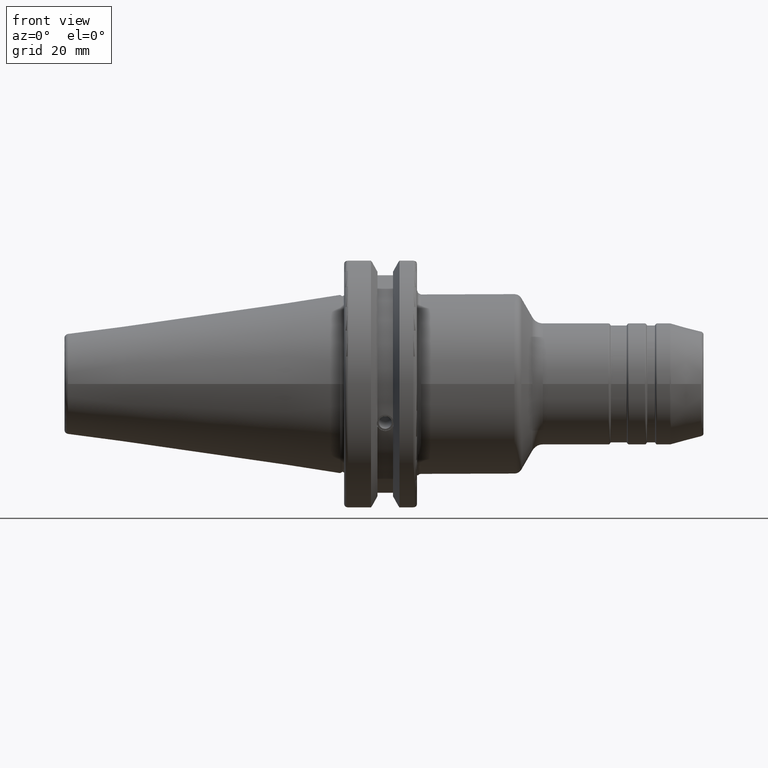
[diagram: clean part render]
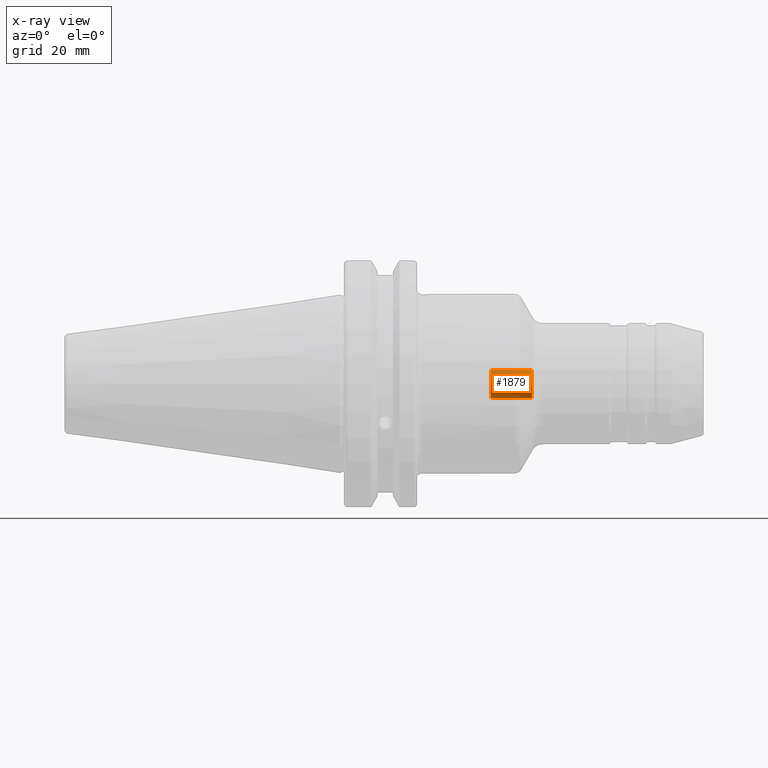
[diagram: x-ray — body ghosted, one internal face saturated and labeled with its STEP entity id]
A machine part, front view, then the same camera in x-ray: the body is ghosted and one INTERNAL B-rep face — a face not visible from any outside direction — is saturated and labeled: STEP entity #1879.
In plain terms, the highlighted cylindrical surface (bore or boss wall) has radius 3.4585 mm, axis along (1, 0, 0).
Its self-contained STEP definition (entity closure, byte-faithful):
#91=CYLINDRICAL_SURFACE('',#2074,3.4585);
#181=LINE('',#3030,#276);
#276=VECTOR('',#2441,3.4585);
#405=FACE_OUTER_BOUND('',#514,.T.);
#514=EDGE_LOOP('',(#1390,#1391,#1392,#1393,#1394));
#674=CIRCLE('',#2075,3.4585);
#675=CIRCLE('',#2076,3.4585);
#676=CIRCLE('',#2077,3.4585);
#796=VERTEX_POINT('',#3027);
#797=VERTEX_POINT('',#3029);
#798=VERTEX_POINT('',#3031);
#1018=EDGE_CURVE('',#796,#796,#674,.T.);
#1019=EDGE_CURVE('',#796,#797,#181,.T.);
#1020=EDGE_CURVE('',#798,#797,#675,.T.);
#1021=EDGE_CURVE('',#797,#798,#676,.T.);
#1390=ORIENTED_EDGE('',*,*,#1018,.F.);
#1391=ORIENTED_EDGE('',*,*,#1019,.T.);
#1392=ORIENTED_EDGE('',*,*,#1020,.F.);
#1393=ORIENTED_EDGE('',*,*,#1021,.F.);
#1394=ORIENTED_EDGE('',*,*,#1019,.F.);
#1879=ADVANCED_FACE('',(#405),#91,.F.);
#2074=AXIS2_PLACEMENT_3D('',#3026,#2437,#2438);
#2075=AXIS2_PLACEMENT_3D('',#3028,#2439,#2440);
#2076=AXIS2_PLACEMENT_3D('',#3032,#2442,#2443);
#2077=AXIS2_PLACEMENT_3D('',#3033,#2444,#2445);
#2437=DIRECTION('center_axis',(1.,0.,0.));
#2438=DIRECTION('ref_axis',(0.,0.,-1.));
#2439=DIRECTION('center_axis',(-1.,0.,0.));
#2440=DIRECTION('ref_axis',(0.,0.,-1.));
#2441=DIRECTION('',(-1.,0.,0.));
#2442=DIRECTION('center_axis',(1.,0.,0.));
#2443=DIRECTION('ref_axis',(0.,0.,-1.));
#2444=DIRECTION('center_axis',(1.,0.,0.));
#2445=DIRECTION('ref_axis',(0.,0.,-1.));
#3026=CARTESIAN_POINT('Origin',(-133.627889844104,0.,0.));
#3027=CARTESIAN_POINT('',(47.5,-4.23544095485112E-16,3.4585));
#3028=CARTESIAN_POINT('Origin',(47.5,0.,0.));
#3029=CARTESIAN_POINT('',(37.3757963347172,-4.23544095485112E-16,3.4585));
#3030=CARTESIAN_POINT('',(-133.627889844104,-4.23544095485112E-16,3.4585));
#3031=CARTESIAN_POINT('',(37.3757963347172,-4.23544095485113E-16,-3.45850000000001));
#3032=CARTESIAN_POINT('Origin',(37.3757963347172,0.,0.));
#3033=CARTESIAN_POINT('Origin',(37.3757963347172,0.,0.));